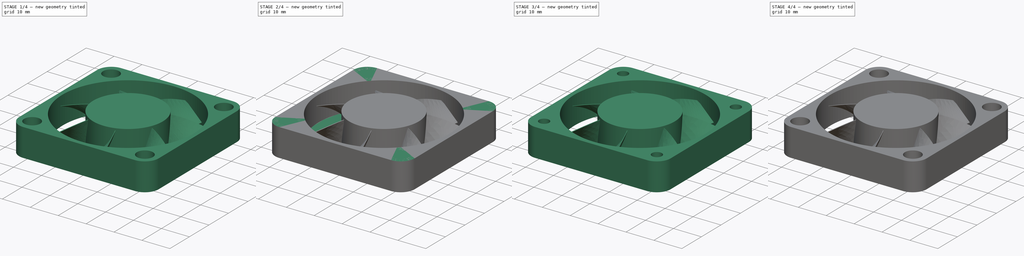
[diagram: build sequence overview — one tinted view per stage of 4, left to right]
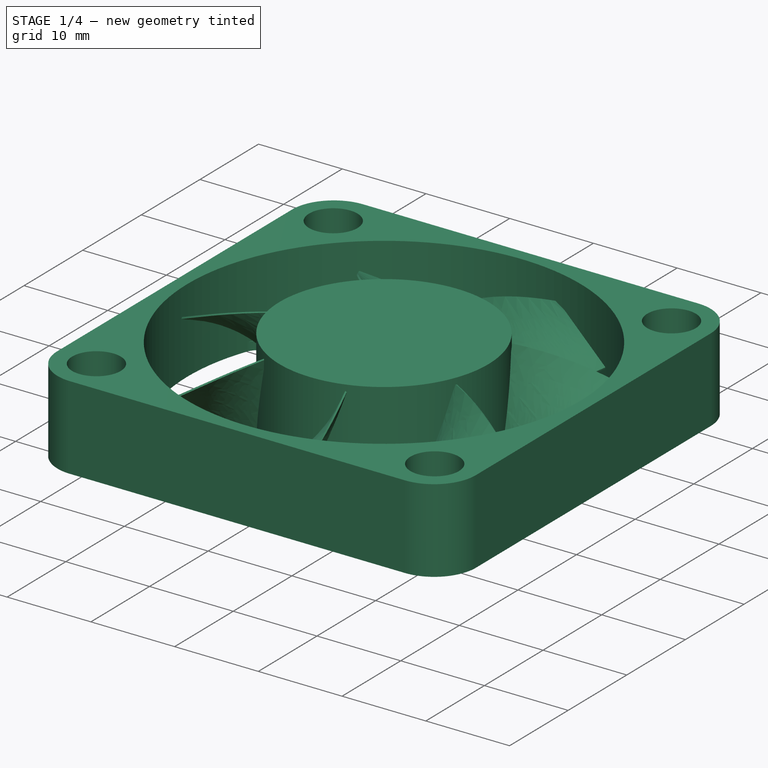
[diagram: stage 1 of 4 — iso view after this stage's code; geometry added in this stage tinted green]
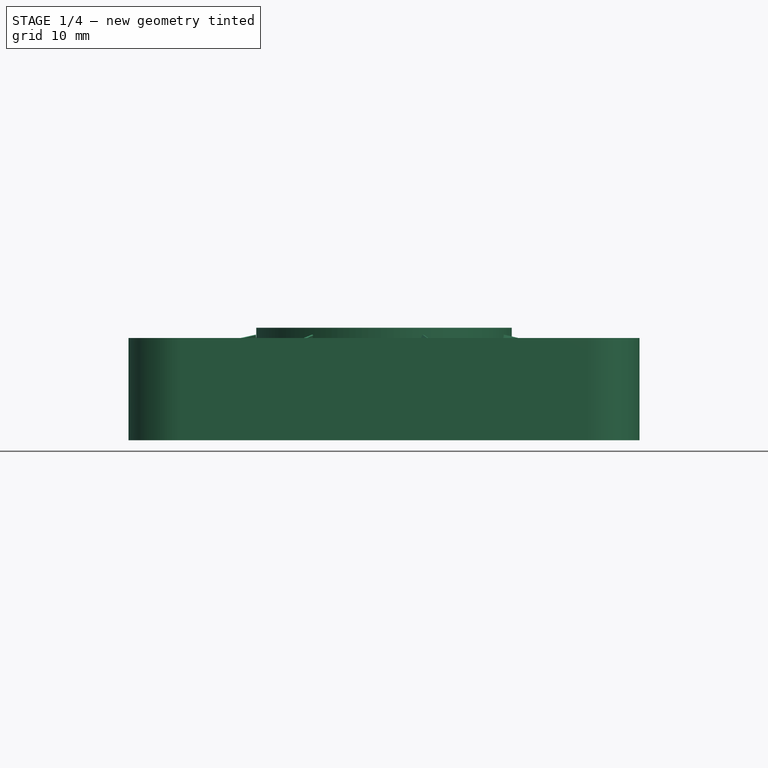
[diagram: stage 1 of 4 — front view after this stage's code; geometry added in this stage tinted green]
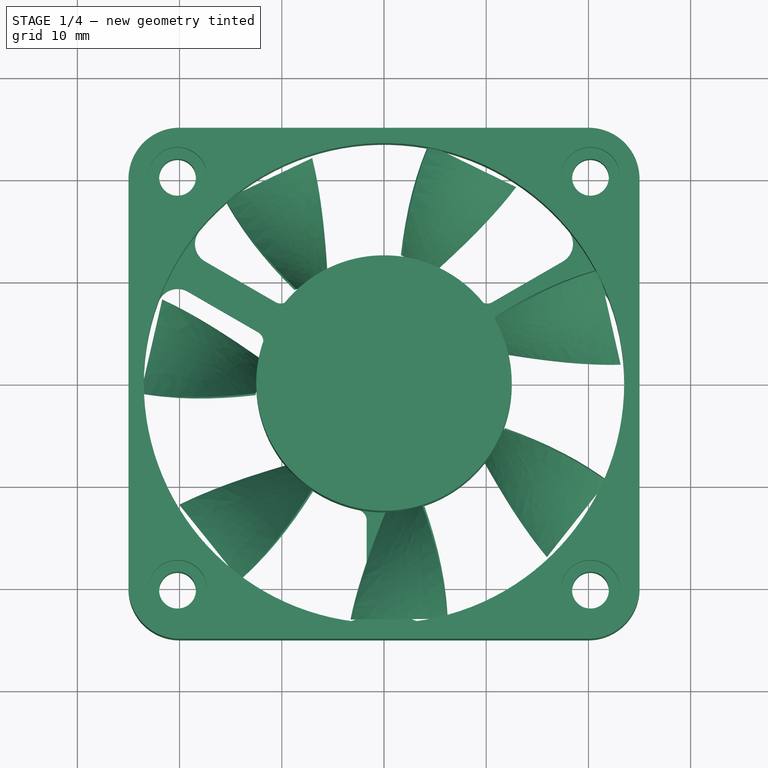
[diagram: stage 1 of 4 — top view after this stage's code; geometry added in this stage tinted green]
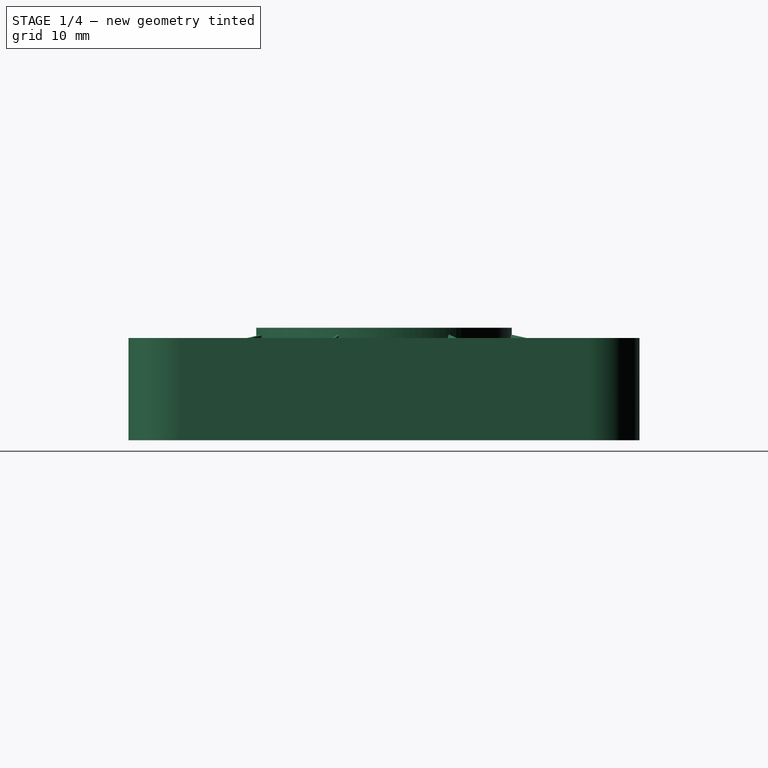
[diagram: stage 1 of 4 — right view after this stage's code; geometry added in this stage tinted green]
FCSTD DOCUMENT  (FreeCAD 0.14R3702 (Git))
Label: fan-50x50mm
License: CC-BY 3.0
LicenseURL: http://creativecommons.org/licenses/by/3.0/
objects: Sketcher::SketchObject×7, PartDesign::Pocket×4, PartDesign::PolarPattern×3, Part::Feature×3, PartDesign::Pad×2, App::DocumentObjectGroup×2, Part::Helix×1, Part::Sweep×1, Part::FeaturePython×1, Part::MultiFuse×1, Part::Compound×1
note: 30 computed .brp shape members not serialized (recipe doc carries the construction recipe); baked Part::Feature solids carry a one-line shape summary decoded from their .brp

FEATURE [Sketcher::SketchObject] Sketch001  label="blade-hub-sketch"
  sketch-geometry (1):
    g0: Circle CenterX=0 CenterY=0 CenterZ=0 NormalX=0 NormalY=0 NormalZ=1 Radius=12.5
  constraints (2):
    c: Coincident(g0,g-1)
    c: Radius(g0) = 12.5
FEATURE [PartDesign::Pad] Pad  label="blade-hub"
  Length = 11
  Length2 = 100
  Sketch = -> Sketch001
  Type = 0
FEATURE [App::DocumentObjectGroup] Group001  label="fan-cover-src"
  Group = -> [Pad003,Pocket,Pocket001,PolarPattern008,Pocket002,PolarPattern009,Pocket003,PolarPattern010]
FEATURE [Part::Feature] Sweep001  label="blade-orig001"
  Placement = pos=(2.05212,-12,5.63816) rot=(0.970288,0.171088,-0.171088;1.60095rad)
  shape: bbox 9.509 x 11 x 9.465 mm, 6 faces (baked)
FEATURE [Part::FeaturePython] Array  # Draft array (typed FeaturePython)
  Angle = 360
  ArrayType = 1
  Axis = (0,0,1)
  Base = -> Sweep001
  Center = (0,0,0)
  IntervalX = (1,0,0)
  IntervalY = (0,1,0)
  IntervalZ = (0,0,1)
  NumberPolar = 7
  NumberX = 2
  NumberY = 2
  NumberZ = 1
FEATURE [App::DocumentObjectGroup] Group  label="blade-src"
  Group = -> [Helix,Sweep,Fusion]
FEATURE [Part::Feature] Fusion001  label="blades-final"
  shape: bbox 46.96 x 46.42 x 11 mm, 45 faces (baked)
FEATURE [Part::Feature] PolarPattern010001  label="fan-chassis"
  shape: bbox 50 x 50 x 10 mm, 48 faces (baked)
FEATURE [Part::Compound] Compound  label="fan-50x50mm"
  Links = -> [Fusion001,PolarPattern010001]
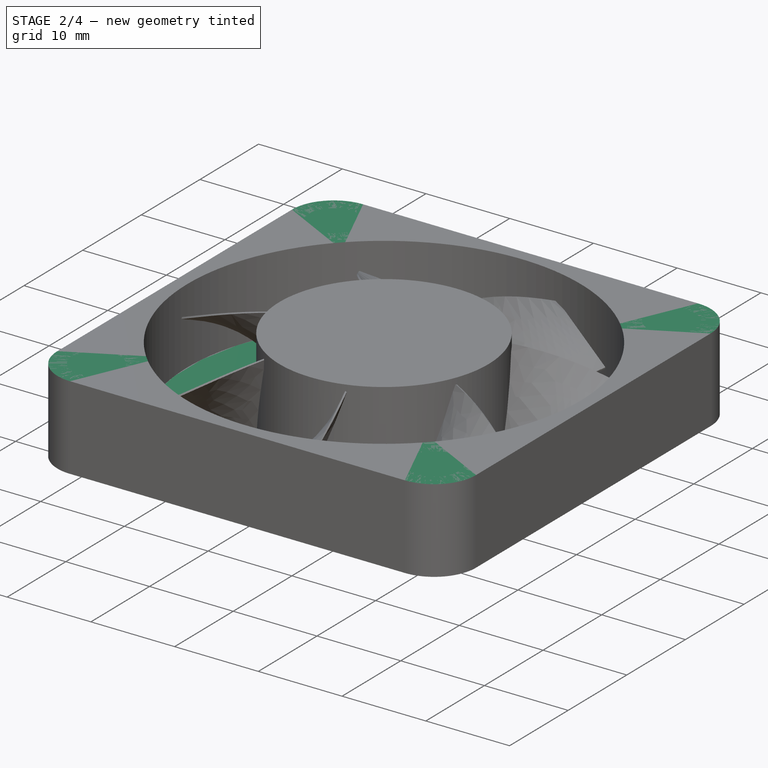
[diagram: stage 2 of 4 — iso view after this stage's code; geometry added in this stage tinted green]
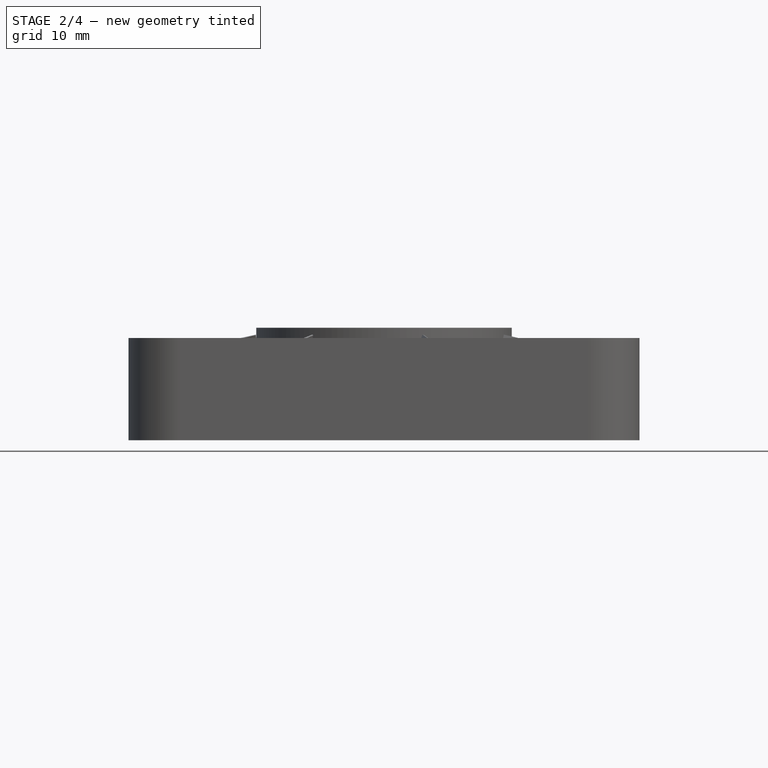
[diagram: stage 2 of 4 — front view after this stage's code; geometry added in this stage tinted green]
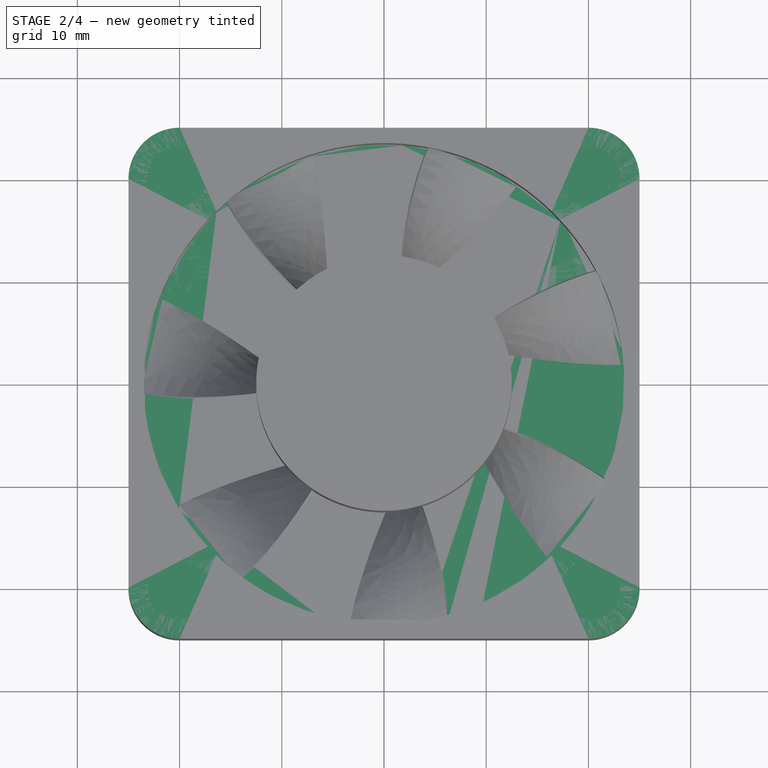
[diagram: stage 2 of 4 — top view after this stage's code; geometry added in this stage tinted green]
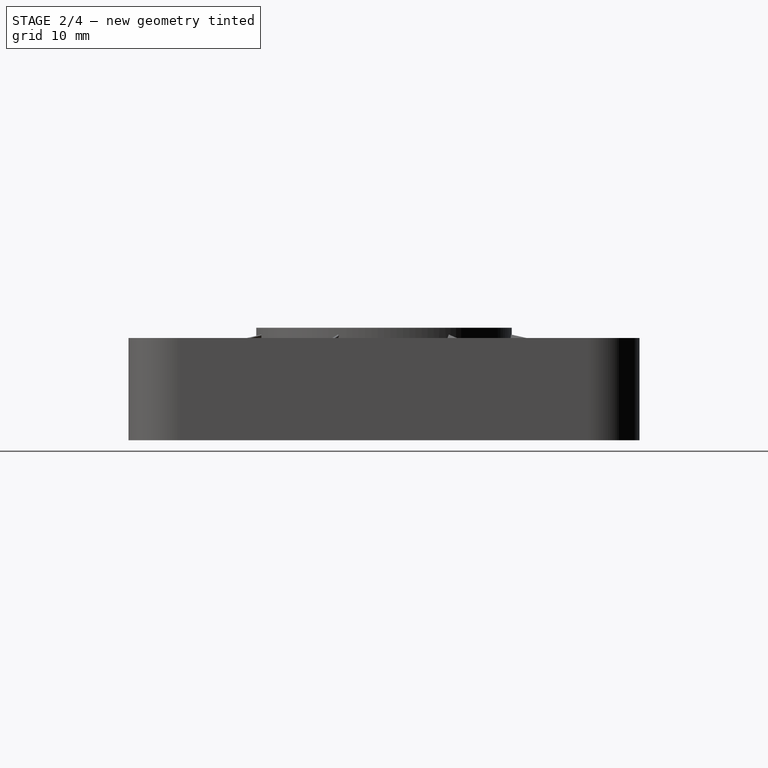
[diagram: stage 2 of 4 — right view after this stage's code; geometry added in this stage tinted green]
FEATURE [Sketcher::SketchObject] Sketch004  label="case-main-body-sketch"
  sketch-geometry (8):
    g0: LineSegment StartX=-20 StartY=25 StartZ=0 EndX=20 EndY=25 EndZ=0
    g1: LineSegment StartX=25 StartY=20 StartZ=0 EndX=25 EndY=-20 EndZ=0
    g2: LineSegment StartX=20 StartY=-25 StartZ=0 EndX=-20 EndY=-25 EndZ=0
    g3: LineSegment StartX=-25 StartY=-20 StartZ=0 EndX=-25 EndY=20 EndZ=0
    g4: ArcOfCircle CenterX=-20 CenterY=20 CenterZ=0 NormalX=0 NormalY=0 NormalZ=1 Radius=5 StartAngle=1.5708 EndAngle=3.14159
    g5: ArcOfCircle CenterX=20 CenterY=20 CenterZ=0 NormalX=0 NormalY=0 NormalZ=1 Radius=5 StartAngle=0 EndAngle=1.5708
    g6: ArcOfCircle CenterX=-20 CenterY=-20 CenterZ=0 NormalX=0 NormalY=0 NormalZ=1 Radius=5 StartAngle=3.14159 EndAngle=4.71239
    g7: ArcOfCircle CenterX=20 CenterY=-20 CenterZ=0 NormalX=0 NormalY=0 NormalZ=1 Radius=5 StartAngle=4.71239 EndAngle=6.28319
  constraints (20):
    c: Horizontal(g0)
    c: Horizontal(g2)
    c: Vertical(g1)
    c: Vertical(g3)
    c: Equal(g0,g3)
    c: Tangent(g0,g4)
    c: Tangent(g3,g4)
    c: Radius(g4) = 5
    c: Tangent(g0,g5)
    c: Tangent(g1,g5)
    c: Equal(g5,g4)
    c: DistanceX(g3,g1) = 50
    c: Tangent(g2,g6)
    c: Tangent(g3,g6)
    c: Tangent(g1,g7)
    c: Tangent(g2,g7)
    c: Equal(g6,g7)
    c: Equal(g7,g5)
    c: Equal(g3,g0)
    c: Symmetric(g4,g7,g-1)
FEATURE [PartDesign::Pad] Pad003  label="case-main-body"
  Length = 10
  Length2 = 100
  Sketch = -> Sketch004
  Type = 0
FEATURE [Sketcher::SketchObject] Sketch005  label="cutout-1-sketch"
  Placement = pos=(0,0,10) rot=(0,0,1;0rad)
  Support = -> Pad003 [Face10]
  sketch-geometry (1):
    g0: Circle CenterX=0 CenterY=0 CenterZ=0 NormalX=0 NormalY=0 NormalZ=1 Radius=23.5
  constraints (2):
    c: Coincident(g0,g-1)
    c: Radius(g0) = 23.5
FEATURE [PartDesign::Pocket] Pocket  label="cutout-1"
  Length = 9
  Sketch = -> Sketch005
  Type = 0
FEATURE [Part::MultiFuse] Fusion  label="blades"
  Shapes = -> [Pad,Array]
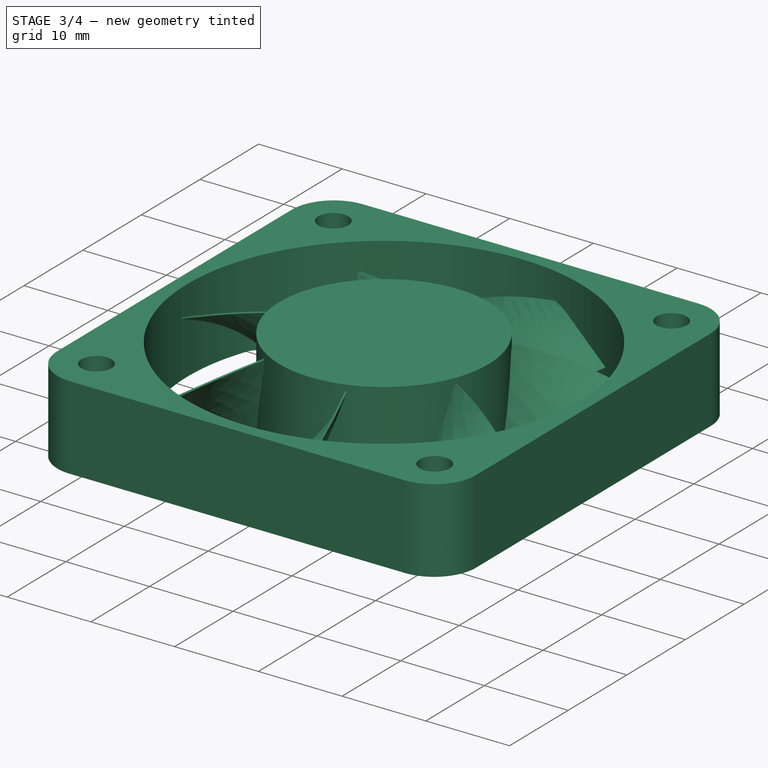
[diagram: stage 3 of 4 — iso view after this stage's code; geometry added in this stage tinted green]
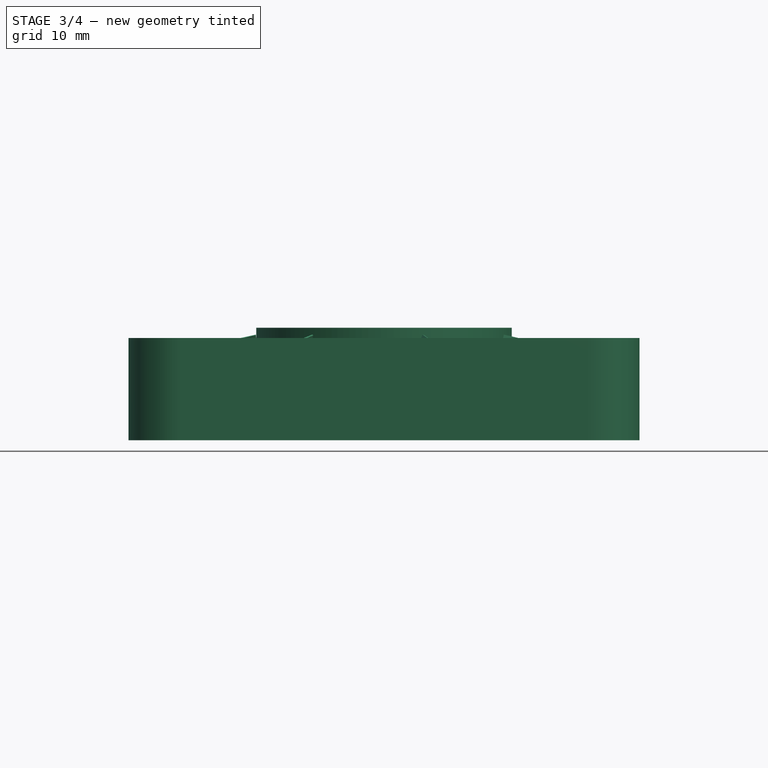
[diagram: stage 3 of 4 — front view after this stage's code; geometry added in this stage tinted green]
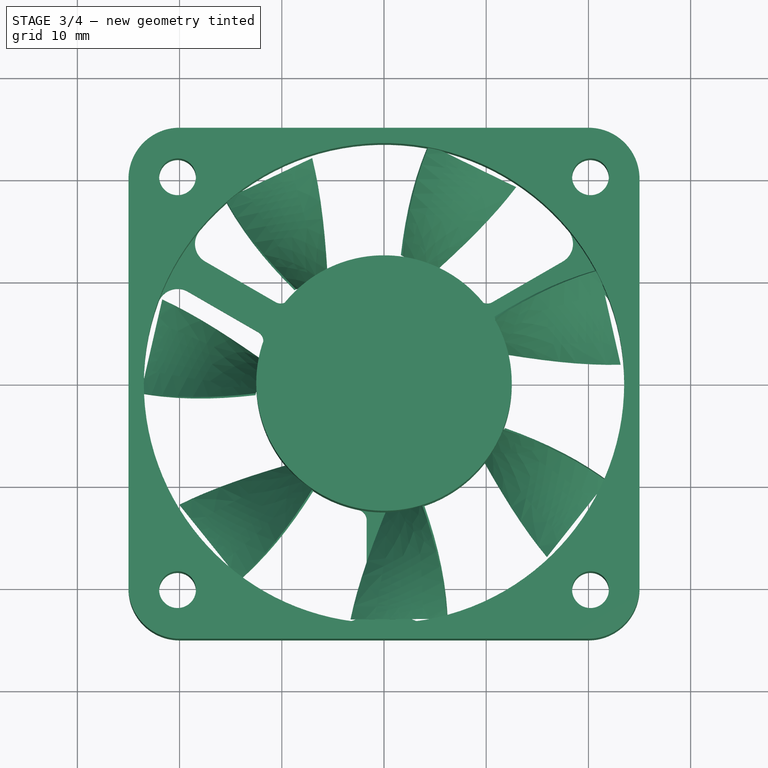
[diagram: stage 3 of 4 — top view after this stage's code; geometry added in this stage tinted green]
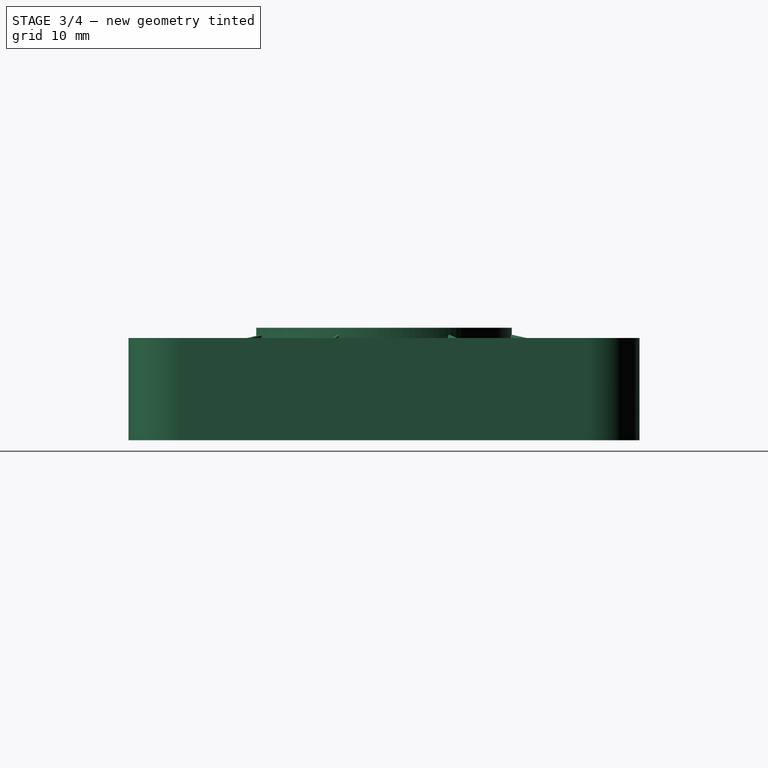
[diagram: stage 3 of 4 — right view after this stage's code; geometry added in this stage tinted green]
FEATURE [Sketcher::SketchObject] Sketch006  label="cutout-2-sketch"
  Placement = pos=(0,0,0) rot=(1,0,0;3.14159rad)
  Support = -> Pocket [Face4]
  sketch-geometry (10):
    g0: LineSegment [constr] StartX=0 StartY=0 StartZ=0 EndX=-20.3516 EndY=-11.75 EndZ=0
    g1: LineSegment StartX=-17.4918 StartY=-12.0619 StartZ=0 EndX=-10.6051 EndY=-8.08587 EndZ=0
    g2: LineSegment [constr] StartX=-15.1297 StartY=-8.73515 StartZ=0 EndX=-14.2797 EndY=-10.2074 EndZ=0
    g3: ArcOfCircle CenterX=-16.4918 CenterY=-13.7939 CenterZ=0 NormalX=0 NormalY=0 NormalZ=1 Radius=2 StartAngle=2.0944 EndAngle=3.83815
    g4: ArcOfCircle CenterX=0 CenterY=0 CenterZ=0 NormalX=0 NormalY=0 NormalZ=1 Radius=23.5 StartAngle=3.83815 EndAngle=5.58663
    g5: ArcOfCircle CenterX=-10.1051 CenterY=-8.95189 CenterZ=0 NormalX=0 NormalY=0 NormalZ=1 Radius=1 StartAngle=0.724957 EndAngle=2.0944
    g6: ArcOfCircle CenterX=0 CenterY=0 CenterZ=0 NormalX=0 NormalY=0 NormalZ=1 Radius=12.5 StartAngle=3.86655 EndAngle=5.55823
    g7: ArcOfCircle CenterX=10.1051 CenterY=-8.95189 CenterZ=0 NormalX=0 NormalY=0 NormalZ=1 Radius=1 StartAngle=1.0472 EndAngle=2.41664
    g8: ArcOfCircle CenterX=16.4918 CenterY=-13.7939 CenterZ=0 NormalX=0 NormalY=0 NormalZ=1 Radius=2 StartAngle=5.58663 EndAngle=7.33038
    g9: LineSegment StartX=10.6051 StartY=-8.08587 StartZ=0 EndX=17.4918 EndY=-12.0619 EndZ=0
  constraints (32):
    c: Coincident(g0,g-1)
    c: Angle(g-2,g0) = 2.0944
    c: Parallel(g1,g0)
    c: PointOnObject(g2,g0)
    c: Perpendicular(g2,g0)
    c: PointOnObject(g2,g1)
    c: Distance(g2) = 1.7
    c: Radius(g3) = 2
    c: Coincident(g3,g1)
    c: Tangent(g3,g1)
    c: Coincident(g4,g-1)
    c: Coincident(g3,g4)
    c: Tangent(g4,g3)
    c: Radius(g5) = 1
    c: Coincident(g5,g1)
    c: Tangent(g1,g5)
    c: Radius(g6) = 12.5
    c: Coincident(g6,g-1)
    c: Coincident(g6,g5)
    c: Tangent(g5,g6)
    c: Symmetric(g5,g6,g-2)
    c: Symmetric(g3,g4,g-2)
    c: Coincident(g7,g6)
    c: Equal(g5,g7)
    c: Symmetric(g1,g7,g-2)
    c: Coincident(g8,g4)
    c: Equal(g8,g3)
    c: Symmetric(g1,g8,g-2)
    c: Coincident(g9,g8)
    c: Coincident(g9,g7)
    c: Radius(g4) = 23.5
    c: PointOnObject(g0,g4)
FEATURE [PartDesign::Pocket] Pocket001  label="cutout-2"
  Length = 5
  Sketch = -> Sketch006
  Type = 1
FEATURE [PartDesign::PolarPattern] PolarPattern008
  Angle = 360
  Axis = -> Sketch006 [N_Axis]
  Occurrences = 3
  Originals = -> [Pocket001]
FEATURE [Sketcher::SketchObject] Sketch007  label="drill-sketch"
  Placement = pos=(0,0,10) rot=(0,0,1;0rad)
  Support = -> PolarPattern008 [Face5]
  sketch-geometry (1):
    g0: Circle CenterX=-20.2 CenterY=20.2 CenterZ=0 NormalX=0 NormalY=0 NormalZ=1 Radius=1.8
  constraints (3):
    c: Radius(g0) = 1.8
    c: DistanceX(g-1,g0) = -20.2
    c: DistanceY(g-1,g0) = 20.2
FEATURE [PartDesign::Pocket] Pocket002  label="drill-master"
  Length = 5
  Sketch = -> Sketch007
  Type = 1
FEATURE [PartDesign::PolarPattern] PolarPattern009  label="drills-array"
  Angle = 360
  Axis = -> Sketch007 [N_Axis]
  Occurrences = 4
  Originals = -> [Pocket002]
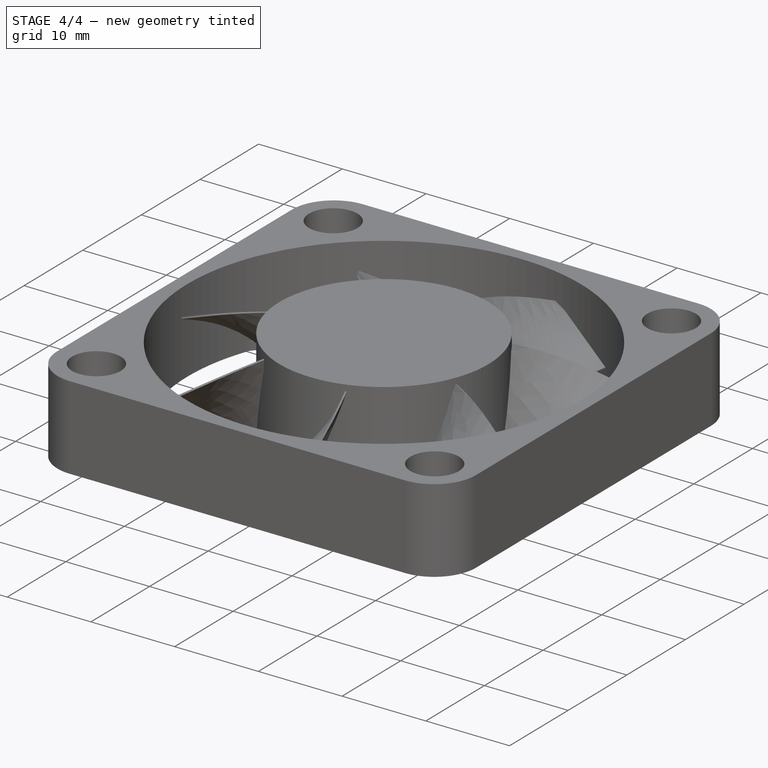
[diagram: stage 4 of 4 — iso view after this stage's code; geometry added in this stage tinted green]
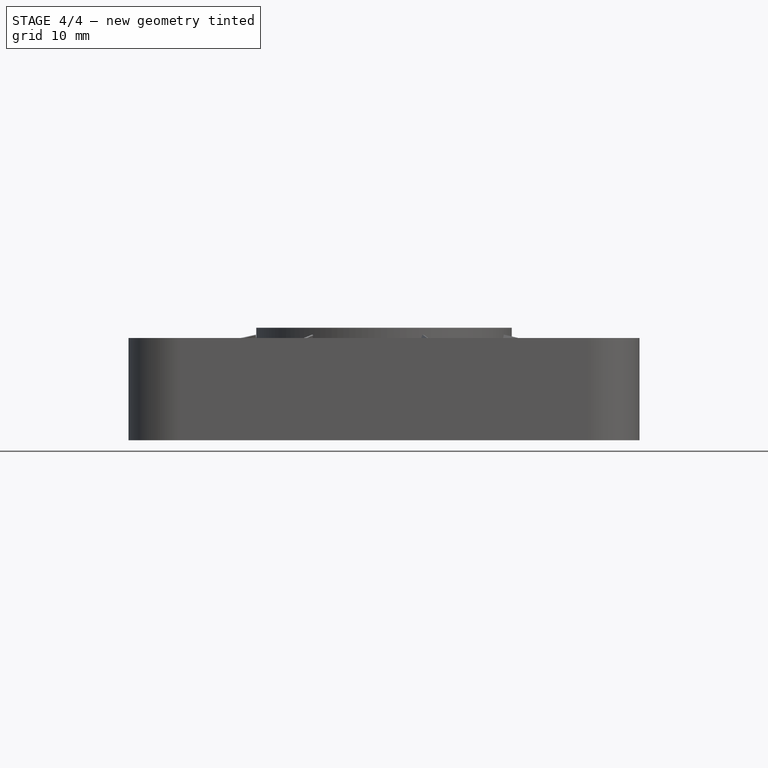
[diagram: stage 4 of 4 — front view after this stage's code; geometry added in this stage tinted green]
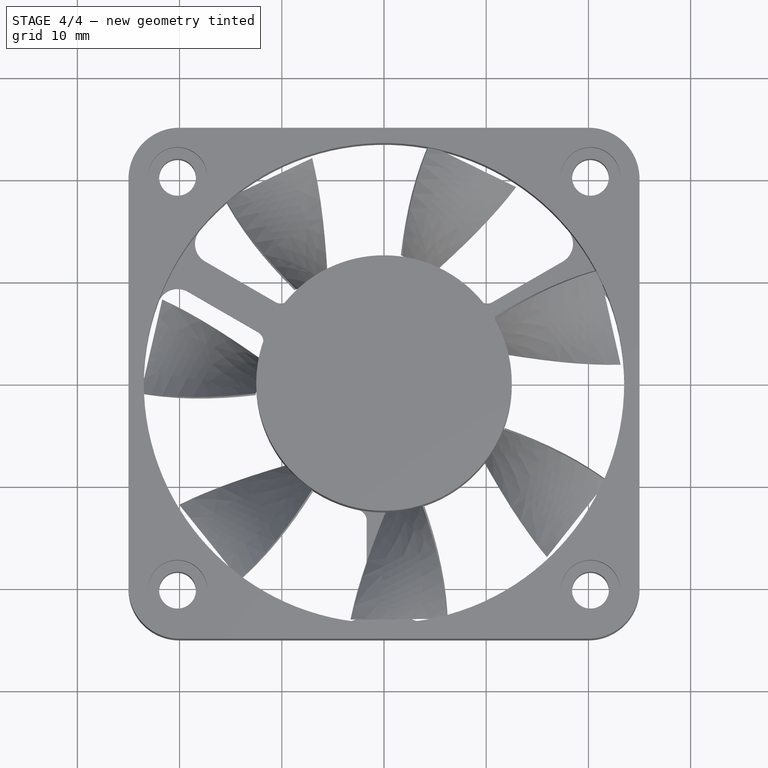
[diagram: stage 4 of 4 — top view after this stage's code; geometry added in this stage tinted green]
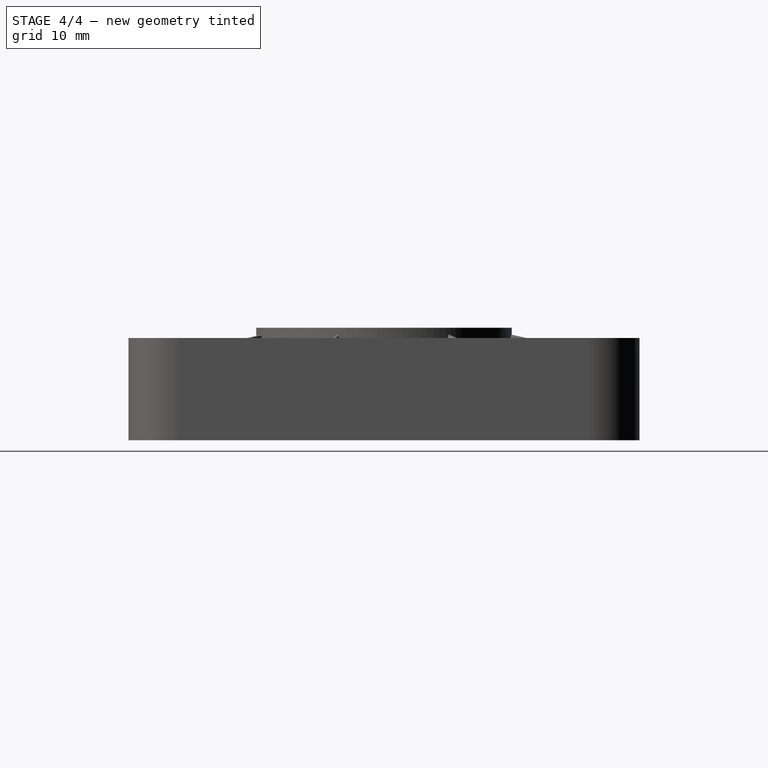
[diagram: stage 4 of 4 — right view after this stage's code; geometry added in this stage tinted green]
FEATURE [Sketcher::SketchObject] Sketch  label="blade-section-sketch"
  sketch-geometry (4):
    g0: LineSegment StartX=0 StartY=5 StartZ=0 EndX=0.2 EndY=5 EndZ=0
    g1: LineSegment StartX=0.2 StartY=5 StartZ=0 EndX=0.2 EndY=-5 EndZ=0
    g2: LineSegment StartX=0.2 StartY=-5 StartZ=0 EndX=0 EndY=-5 EndZ=0
    g3: LineSegment StartX=0 StartY=-5 StartZ=0 EndX=0 EndY=5 EndZ=0
  constraints (12):
    c: Coincident(g0,g1)
    c: Coincident(g1,g2)
    c: Coincident(g2,g3)
    c: Coincident(g3,g0)
    c: Horizontal(g0)
    c: Horizontal(g2)
    c: Vertical(g1)
    c: Vertical(g3)
    c: PointOnObject(g0,g-2)
    c: Symmetric(g0,g2,g-1)
    c: DistanceY(g3) = 10
    c: DistanceX(g0) = 0.2
FEATURE [Part::Helix] Helix
  Angle = 0
  Height = 11
  LocalCoord = 1
  Pitch = 78
  Placement = pos=(-1,0,0) rot=(0,0,1;0rad)
  Radius = 1
  Style = 1
FEATURE [Part::Sweep] Sweep  label="blade-orig"
  Frenet = true
  Sections = -> [Sketch]
  Solid = true
  Spine = -> Helix [Edge1]
  Transition = 1
FEATURE [Sketcher::SketchObject] Sketch008  label="drill-cap-sketch"
  ExternalGeometry = -> [PolarPattern009]
  Placement = pos=(0,0,10) rot=(0,0,1;0rad)
  Support = -> PolarPattern009 [Face5]
  sketch-geometry (1):
    g0: Circle CenterX=-20.2 CenterY=20.2 CenterZ=0 NormalX=0 NormalY=0 NormalZ=1 Radius=2.9
  constraints (2):
    c: Coincident(g0,g-3)
    c: Radius(g0) = 2.9
FEATURE [PartDesign::Pocket] Pocket003  label="drill-cap"
  Length = 3
  Sketch = -> Sketch008
  Type = 0
FEATURE [PartDesign::PolarPattern] PolarPattern010  label="drills-cap-array"
  Angle = 360
  Axis = -> Sketch008 [N_Axis]
  Occurrences = 4
  Originals = -> [Pocket003]
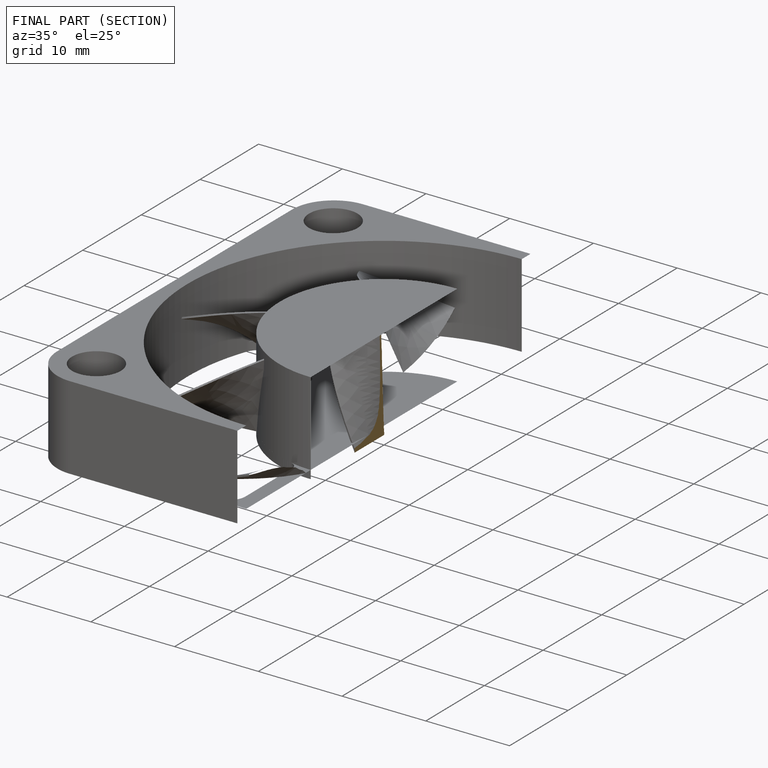
[diagram: finished part — half-section view (interior)]
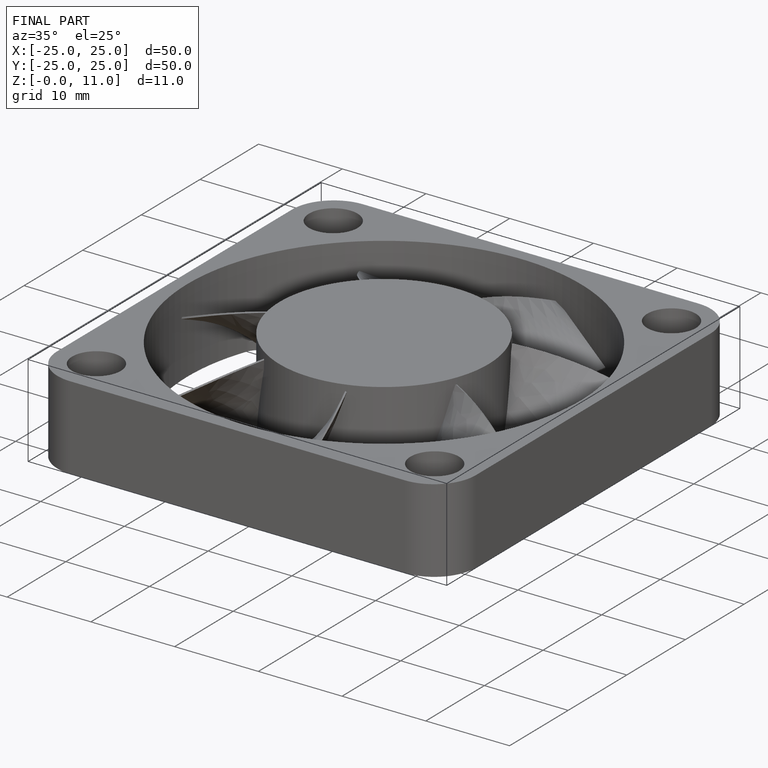
[diagram: finished part — iso view with bounding-box wireframe]
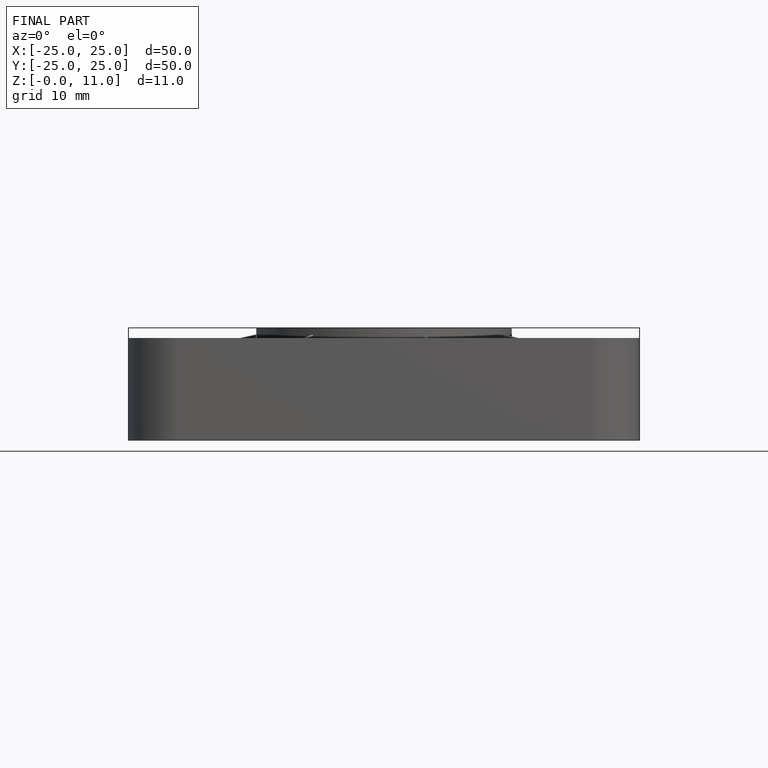
[diagram: finished part — front view with bounding-box wireframe]
